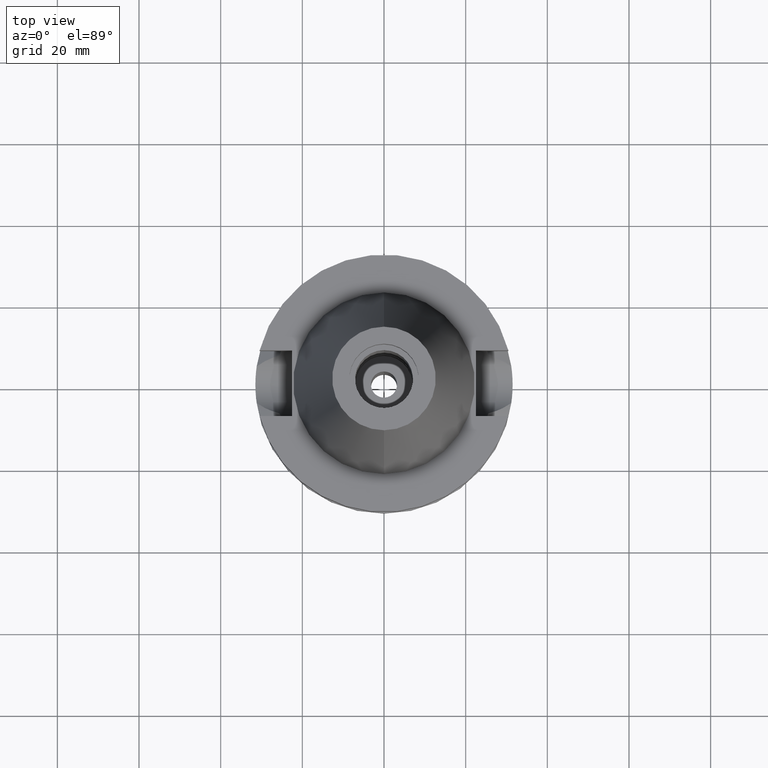
[diagram: clean part render]
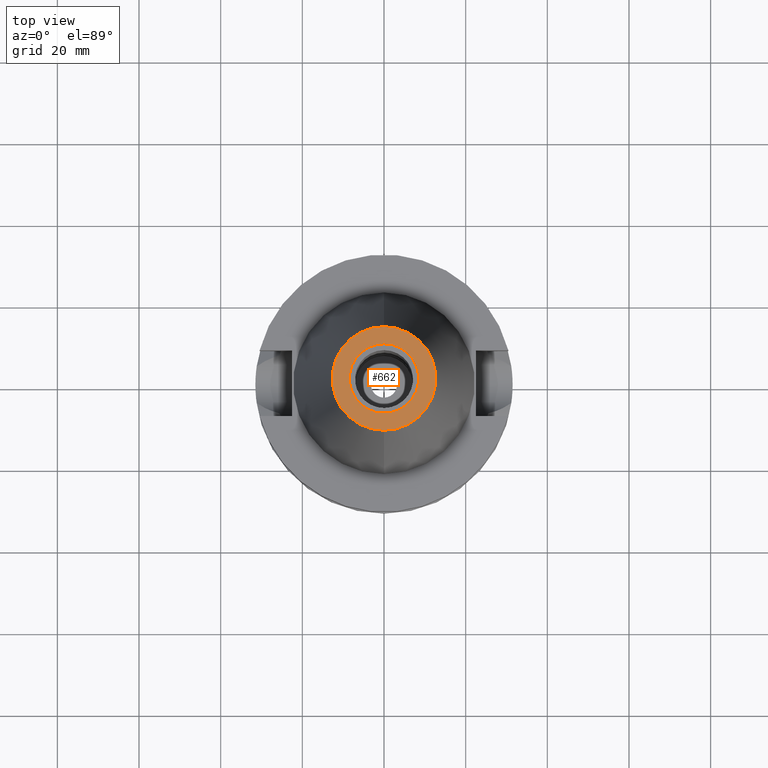
[diagram: same view with one face highlighted and labeled with its STEP entity id]
A machine part, top view. The second image highlights one B-rep face of the part: STEP entity #662.
In plain terms, the highlighted planar face has unit normal (0, 0, -1).
Its self-contained STEP definition (entity closure, byte-faithful):
#45 = ORIENTED_EDGE ( 'NONE', *, *, #2474, .F. ) ;
#86 = EDGE_LOOP ( 'NONE', ( #2830, #45 ) ) ;
#234 = EDGE_CURVE ( 'NONE', #2596, #1391, #2126, .T. ) ;
#299 = CARTESIAN_POINT ( 'NONE',  ( 0.0000000000000000000, 0.0000000000000000000, 65.40000000000000568 ) ) ;
#311 = DIRECTION ( 'NONE',  ( 0.0000000000000000000, 1.000000000000000000, 0.0000000000000000000 ) ) ;
#338 = VERTEX_POINT ( 'NONE', #1419 ) ;
#583 = EDGE_CURVE ( 'NONE', #1408, #338, #3098, .T. ) ;
#611 = ORIENTED_EDGE ( 'NONE', *, *, #2790, .F. ) ;
#620 = CIRCLE ( 'NONE', #2389, 12.68766899429999917 ) ;
#627 = CARTESIAN_POINT ( 'NONE',  ( 0.0000000000000000000, 0.0000000000000000000, 65.40000000000000568 ) ) ;
#633 = DIRECTION ( 'NONE',  ( 0.0000000000000000000, 1.000000000000000000, 0.0000000000000000000 ) ) ;
#662 = ADVANCED_FACE ( 'NONE', ( #2062, #3071 ), #1104, .F. ) ;
#710 = EDGE_LOOP ( 'NONE', ( #611, #1504 ) ) ;
#737 = DIRECTION ( 'NONE',  ( 0.0000000000000000000, 0.0000000000000000000, -1.000000000000000000 ) ) ;
#759 = AXIS2_PLACEMENT_3D ( 'NONE', #2565, #2801, #633 ) ;
#848 = DIRECTION ( 'NONE',  ( 0.0000000000000000000, -1.000000000000000000, 0.0000000000000000000 ) ) ;
#863 = AXIS2_PLACEMENT_3D ( 'NONE', #627, #1368, #3033 ) ;
#1001 = DIRECTION ( 'NONE',  ( 0.0000000000000000000, 0.0000000000000000000, 1.000000000000000000 ) ) ;
#1104 = PLANE ( 'NONE',  #863 ) ;
#1278 = CIRCLE ( 'NONE', #1937, 8.500000000000000000 ) ;
#1368 = DIRECTION ( 'NONE',  ( 0.0000000000000000000, 0.0000000000000000000, -1.000000000000000000 ) ) ;
#1391 = VERTEX_POINT ( 'NONE', #2256 ) ;
#1408 = VERTEX_POINT ( 'NONE', #3014 ) ;
#1419 = CARTESIAN_POINT ( 'NONE',  ( 0.0000000000000000000, 12.68766899429999917, 65.40000000000000568 ) ) ;
#1495 = DIRECTION ( 'NONE',  ( 0.0000000000000000000, -1.000000000000000000, 0.0000000000000000000 ) ) ;
#1504 = ORIENTED_EDGE ( 'NONE', *, *, #583, .F. ) ;
#1860 = DIRECTION ( 'NONE',  ( 0.0000000000000000000, 0.0000000000000000000, -1.000000000000000000 ) ) ;
#1937 = AXIS2_PLACEMENT_3D ( 'NONE', #2482, #1001, #1495 ) ;
#2062 = FACE_OUTER_BOUND ( 'NONE', #710, .T. ) ;
#2126 = CIRCLE ( 'NONE', #759, 8.500000000000000000 ) ;
#2256 = CARTESIAN_POINT ( 'NONE',  ( 0.0000000000000000000, -8.500000000000000000, 65.40000000000000568 ) ) ;
#2275 = AXIS2_PLACEMENT_3D ( 'NONE', #3000, #1860, #848 ) ;
#2389 = AXIS2_PLACEMENT_3D ( 'NONE', #299, #737, #311 ) ;
#2474 = EDGE_CURVE ( 'NONE', #1391, #2596, #1278, .T. ) ;
#2482 = CARTESIAN_POINT ( 'NONE',  ( 0.0000000000000000000, 0.0000000000000000000, 65.40000000000000568 ) ) ;
#2565 = CARTESIAN_POINT ( 'NONE',  ( 0.0000000000000000000, 0.0000000000000000000, 65.40000000000000568 ) ) ;
#2567 = CARTESIAN_POINT ( 'NONE',  ( 0.0000000000000000000, 8.500000000000000000, 65.40000000000000568 ) ) ;
#2596 = VERTEX_POINT ( 'NONE', #2567 ) ;
#2790 = EDGE_CURVE ( 'NONE', #338, #1408, #620, .T. ) ;
#2801 = DIRECTION ( 'NONE',  ( 0.0000000000000000000, 0.0000000000000000000, 1.000000000000000000 ) ) ;
#2830 = ORIENTED_EDGE ( 'NONE', *, *, #234, .F. ) ;
#3000 = CARTESIAN_POINT ( 'NONE',  ( 0.0000000000000000000, 0.0000000000000000000, 65.40000000000000568 ) ) ;
#3014 = CARTESIAN_POINT ( 'NONE',  ( 0.0000000000000000000, -12.68766899429999917, 65.40000000000000568 ) ) ;
#3033 = DIRECTION ( 'NONE',  ( 0.0000000000000000000, -1.000000000000000000, 0.0000000000000000000 ) ) ;
#3071 = FACE_BOUND ( 'NONE', #86, .T. ) ;
#3098 = CIRCLE ( 'NONE', #2275, 12.68766899429999917 ) ;